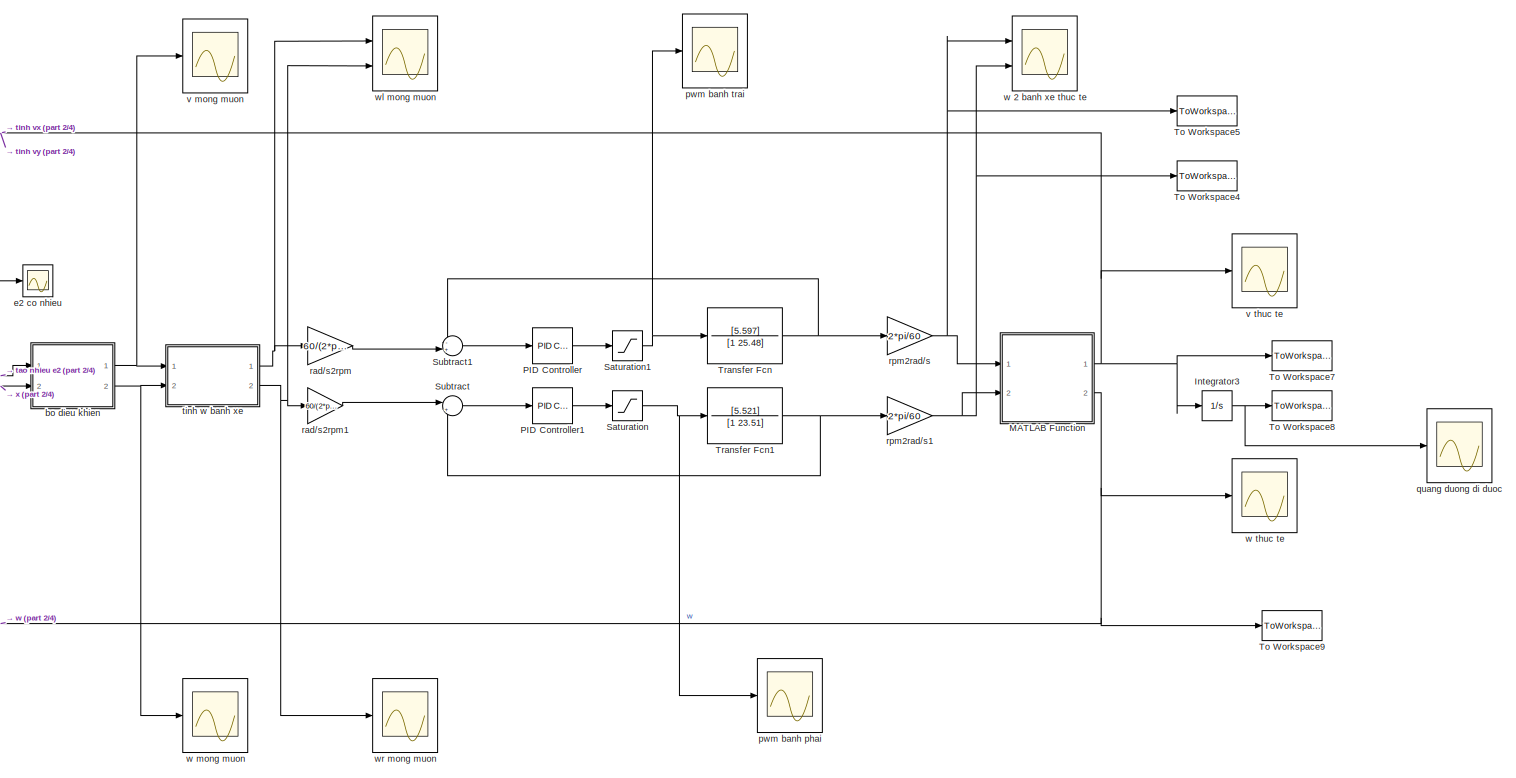
[diagram: root canvas - part 1/4, top right region]
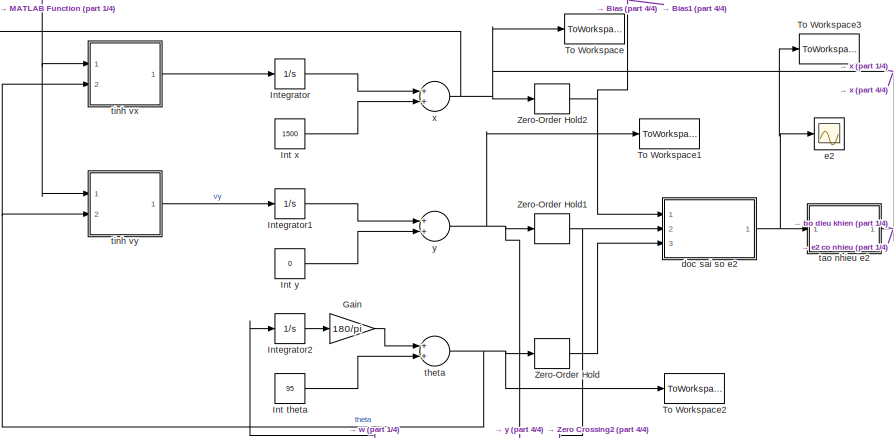
[diagram: root canvas - part 2/4, top left region]
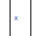
[diagram: root canvas - part 3/4, middle left region]
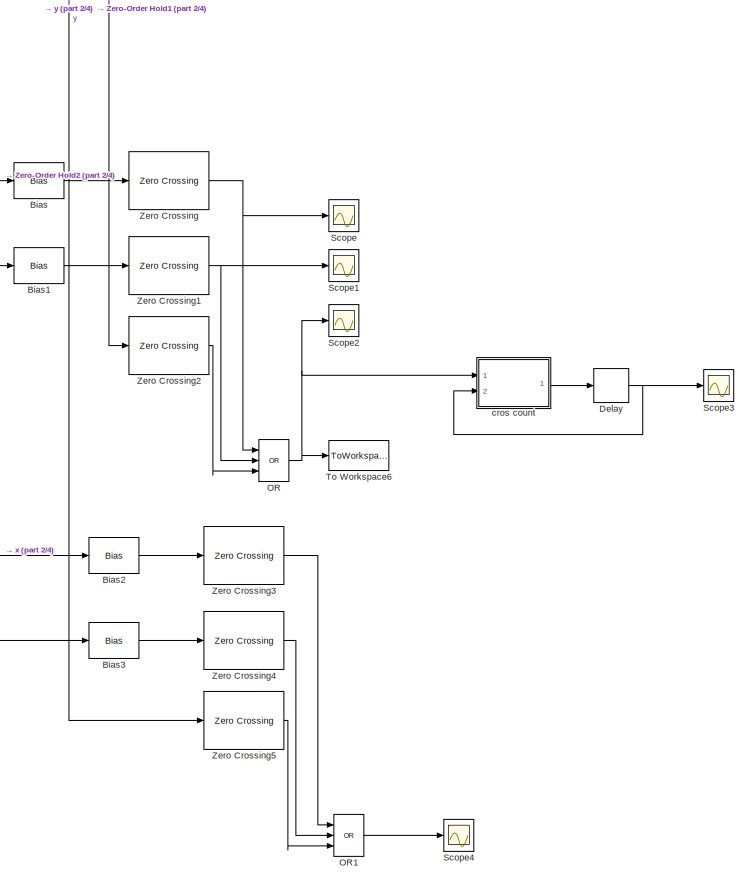
[diagram: root canvas - part 4/4, bottom center region]
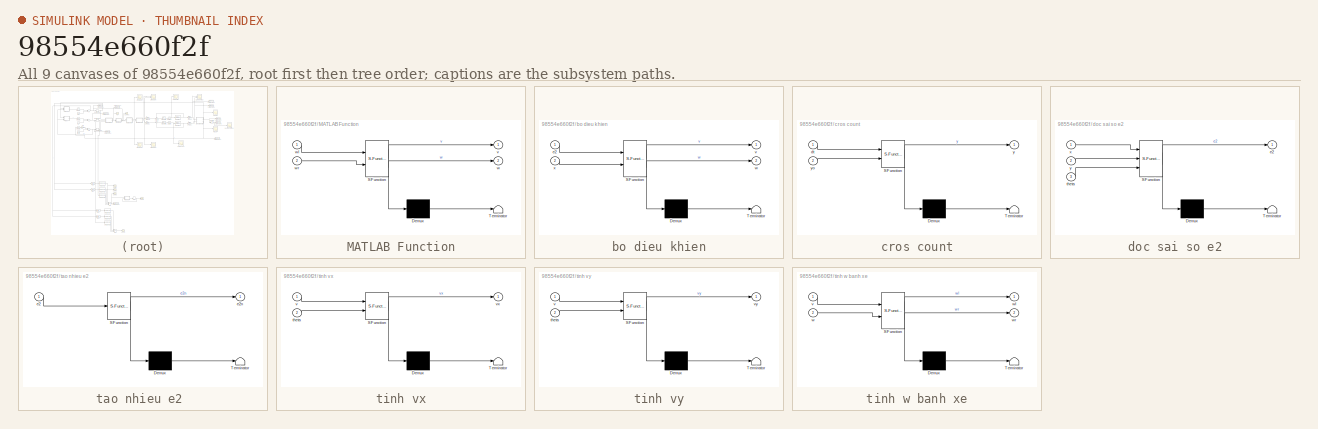
[diagram: thumbnail index - all 9 canvases of the model, root first then tree order]
MODEL slx_98554e660f2f
KIND model
CONFIG AbsTol = auto
CONFIG EnableMultiTasking = off
CONFIG FixedStep = auto
CONFIG MaxStep = auto
CONFIG MinStep = auto
CONFIG RelTol = 1e-3
CONFIG SampleTimeConstraint = Unconstrained
CONFIG Solver = VariableStepAuto
CONFIG SolverName = VariableStepAuto
CONFIG StartTime = 0.0
CONFIG StopTime = 8.5
BLOCK [Bias] Bias
  Bias = -1000
  SaturateOnIntegerOverflow = off
BLOCK [Bias] Bias1
  Bias = 1000
  SaturateOnIntegerOverflow = off
BLOCK [Bias] Bias2
  Bias = -1000
  SaturateOnIntegerOverflow = off
BLOCK [Bias] Bias3
  Bias = 1000
  SaturateOnIntegerOverflow = off
BLOCK [Delay] Delay
  DelayLength = 1
  InputPortMap = u0
  Ports = [1, 1]
  SampleTime = 0.1
BLOCK [Gain] Gain
  Gain = 180/pi
  OutDataTypeStr = Inherit: Inherit via internal rule
  ParamDataTypeStr = Inherit: Inherit via internal rule
  SaturateOnIntegerOverflow = off
BLOCK [Constant] Int theta
  Value = 95
BLOCK [Constant] Int x
  Value = 1500
BLOCK [Constant] Int y
  Value = 0
BLOCK [Integrator] Integrator
  Ports = [1, 1]
BLOCK [Integrator] Integrator1
  Ports = [1, 1]
BLOCK [Integrator] Integrator2
  Ports = [1, 1]
BLOCK [Integrator] Integrator3
  Ports = [1, 1]
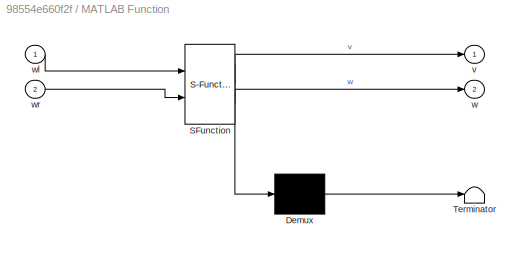
BLOCK [SubSystem] MATLAB Function
  ErrorFcn = Stateflow.Translate.translate
  PermitHierarchicalResolution = ExplicitOnly
  Ports = [2, 2]
  RequestExecContextInheritance = off
  SFBlockType = MATLAB Function
  TreatAsAtomicUnit = on
BLOCK [Demux] MATLAB Function/ Demux 
  Outputs = 1
  Ports = [1, 1]
BLOCK [S-Function] MATLAB Function/ SFunction 
  EnableBusSupport = on
  FunctionName = sf_sfun
  PortCounts = [2 3]
  Ports = [2, 3]
  SFcnIsStateOwnerBlock = off
  SFunctionDeploymentMode = off
  Tag = Stateflow S-Function mophongsimulink 4
BLOCK [Terminator] MATLAB Function/ Terminator 
BLOCK [Outport] MATLAB Function/v
  IconDisplay = Port number
BLOCK [Outport] MATLAB Function/w
  IconDisplay = Port number
  Port = 2
BLOCK [Inport] MATLAB Function/wl
  IconDisplay = Port number
BLOCK [Inport] MATLAB Function/wr
  IconDisplay = Port number
  Port = 2
BLOCK [Logic] OR
  AllPortsSameDT = off
  IconShape = distinctive
  Inputs = 3
  Operator = OR
  OutDataTypeStr = boolean
  Ports = [3, 1]
BLOCK [Logic] OR1
  AllPortsSameDT = off
  IconShape = distinctive
  Inputs = 3
  Operator = OR
  OutDataTypeStr = boolean
  Ports = [3, 1]
BLOCK [Reference] PID Controller  REF=simulink/Continuous/PID Controller
  Ports = [1, 1]
  SourceBlock = simulink/Continuous/PID Controller
  SourceProductBaseCode = SL
  SourceProductName = Simulink
  SourceType = PID 1dof
BLOCK [Reference] PID Controller1  REF=simulink/Continuous/PID Controller
  Ports = [1, 1]
  SourceBlock = simulink/Continuous/PID Controller
  SourceProductBaseCode = SL
  SourceProductName = Simulink
  SourceType = PID 1dof
BLOCK [Saturate] Saturation
  InputPortMap = u0
  LowerLimit = 0
  Ports = [1, 1]
  UpperLimit = 1000
BLOCK [Saturate] Saturation1
  InputPortMap = u0
  LowerLimit = 0
  Ports = [1, 1]
  UpperLimit = 1000
BLOCK [Scope] Scope
  Floating = off
  NumInputPorts = 1
  Ports = [1]
  ScopeSpecificationString = Simulink.scopes.TimeScopeBlockCfg('CurrentConfiguration', extmgr.ConfigurationSet(extmgr.Configuration('Core','General UI',true),extmgr.Configuration('Core','Source UI',true),extmgr.Configuration('Sources','WiredSimulink',true,'DataLoggingVariableName','ScopeData1'),extmgr.Configuration('Visuals','Time Domain',true,'SerializedDisplays',{struct('MinYLimReal','-0.125','MaxYLimReal','1.125','YLabelRe...<+1360ch>
BLOCK [Scope] Scope1
  Floating = off
  NumInputPorts = 1
  Ports = [1]
  ScopeSpecificationString = Simulink.scopes.TimeScopeBlockCfg('CurrentConfiguration', extmgr.ConfigurationSet(extmgr.Configuration('Core','General UI',true),extmgr.Configuration('Core','Source UI',true),extmgr.Configuration('Sources','WiredSimulink',true,'DataLoggingVariableName','ScopeData2'),extmgr.Configuration('Visuals','Time Domain',true,'SerializedDisplays',{struct('MinYLimReal','-0.125','MaxYLimReal','1.125','YLabelRe...<+1361ch>
BLOCK [Scope] Scope2
  Floating = off
  NumInputPorts = 1
  Ports = [1]
  ScopeSpecificationString = Simulink.scopes.TimeScopeBlockCfg('CurrentConfiguration', extmgr.ConfigurationSet(extmgr.Configuration('Core','General UI',true),extmgr.Configuration('Core','Source UI',true),extmgr.Configuration('Sources','WiredSimulink',true,'DataLoggingVariableName','ScopeData3'),extmgr.Configuration('Visuals','Time Domain',true,'SerializedDisplays',{struct('MinYLimReal','-0.125','MaxYLimReal','1.125','YLabelRe...<+1378ch>
BLOCK [Scope] Scope3
  Floating = off
  NumInputPorts = 1
  Ports = [1]
  ScopeSpecificationString = Simulink.scopes.TimeScopeBlockCfg('CurrentConfiguration', extmgr.ConfigurationSet(extmgr.Configuration('Core','General UI',true),extmgr.Configuration('Core','Source UI',true),extmgr.Configuration('Sources','WiredSimulink',true,'DataLoggingVariableName','ScopeData1'),extmgr.Configuration('Visuals','Time Domain',true,'SerializedDisplays',{struct('MinYLimReal','-0.125','MaxYLimReal','1.125','YLabelRe...<+1381ch>
BLOCK [Scope] Scope4
  Floating = off
  NumInputPorts = 1
  Ports = [1]
  ScopeSpecificationString = Simulink.scopes.TimeScopeBlockCfg('CurrentConfiguration', extmgr.ConfigurationSet(extmgr.Configuration('Core','General UI',true),extmgr.Configuration('Core','Source UI',true),extmgr.Configuration('Sources','WiredSimulink',true,'DataLoggingVariableName','ScopeData2'),extmgr.Configuration('Visuals','Time Domain',true,'SerializedDisplays',{struct('MinYLimReal','-0.125','MaxYLimReal','1.125','YLabelRe...<+1379ch>
BLOCK [Sum] Subtract
  IconShape = round
  InputSameDT = off
  Inputs = |+-
  OutDataTypeStr = Inherit: Inherit via internal rule
  Ports = [2, 1]
  SaturateOnIntegerOverflow = off
BLOCK [Sum] Subtract1
  IconShape = round
  InputSameDT = off
  Inputs = -+|
  OutDataTypeStr = Inherit: Inherit via internal rule
  Ports = [2, 1]
  SaturateOnIntegerOverflow = off
BLOCK [ToWorkspace] To Workspace
  FixptAsFi = on
  MaxDataPoints = inf
  Ports = [1]
  SampleTime = 0.1
  Save2DSignal = 3-D array (concatenate along third dimension)
  VariableName = x
BLOCK [ToWorkspace] To Workspace1
  FixptAsFi = on
  MaxDataPoints = inf
  Ports = [1]
  SampleTime = 0.1
  Save2DSignal = 3-D array (concatenate along third dimension)
  VariableName = y
BLOCK [ToWorkspace] To Workspace2
  FixptAsFi = on
  MaxDataPoints = inf
  Ports = [1]
  SampleTime = 0.1
  Save2DSignal = 3-D array (concatenate along third dimension)
  VariableName = theta
BLOCK [ToWorkspace] To Workspace3
  FixptAsFi = on
  MaxDataPoints = inf
  Ports = [1]
  SampleTime = 0.1
  Save2DSignal = 3-D array (concatenate along third dimension)
  VariableName = e2
BLOCK [ToWorkspace] To Workspace4
  FixptAsFi = on
  MaxDataPoints = inf
  Ports = [1]
  SampleTime = 0.1
  Save2DSignal = 3-D array (concatenate along third dimension)
  VariableName = wr
BLOCK [ToWorkspace] To Workspace5
  FixptAsFi = on
  MaxDataPoints = inf
  Ports = [1]
  SampleTime = 0.1
  Save2DSignal = 3-D array (concatenate along third dimension)
  VariableName = wl
BLOCK [ToWorkspace] To Workspace6
  FixptAsFi = on
  MaxDataPoints = inf
  Ports = [1]
  SampleTime = -1
  Save2DSignal = 3-D array (concatenate along third dimension)
  VariableName = cros
BLOCK [ToWorkspace] To Workspace7
  FixptAsFi = on
  MaxDataPoints = inf
  Ports = [1]
  SampleTime = 0.1
  Save2DSignal = 3-D array (concatenate along third dimension)
  VariableName = v
BLOCK [ToWorkspace] To Workspace8
  FixptAsFi = on
  MaxDataPoints = inf
  Ports = [1]
  SampleTime = 0.1
  Save2DSignal = 3-D array (concatenate along third dimension)
  VariableName = s
BLOCK [ToWorkspace] To Workspace9
  FixptAsFi = on
  MaxDataPoints = inf
  Ports = [1]
  SampleTime = 0.1
  Save2DSignal = 3-D array (concatenate along third dimension)
  VariableName = w
BLOCK [TransferFcn] Transfer Fcn
  Denominator = [1 25.48]
  Numerator = [5.597]
BLOCK [TransferFcn] Transfer Fcn1
  Denominator = [1 23.51]
  Numerator = [5.521]
BLOCK [Reference] Zero Crossing  REF=dspsigops/Zero Crossing
  Ports = [1, 1]
  SourceBlock = dspsigops/Zero Crossing
  SourceProductBaseCode = DS
  SourceProductName = DSP System Toolbox
  SourceType = Zero Crossing
  UserDataPersistent = on
BLOCK [Reference] Zero Crossing1  REF=dspsigops/Zero Crossing
  Ports = [1, 1]
  SourceBlock = dspsigops/Zero Crossing
  SourceProductBaseCode = DS
  SourceProductName = DSP System Toolbox
  SourceType = Zero Crossing
  UserDataPersistent = on
BLOCK [Reference] Zero Crossing2  REF=dspsigops/Zero Crossing
  Ports = [1, 1]
  SourceBlock = dspsigops/Zero Crossing
  SourceProductBaseCode = DS
  SourceProductName = DSP System Toolbox
  SourceType = Zero Crossing
  UserDataPersistent = on
BLOCK [Reference] Zero Crossing3  REF=dspsigops/Zero Crossing
  Ports = [1, 1]
  SourceBlock = dspsigops/Zero Crossing
  SourceProductBaseCode = DS
  SourceProductName = DSP System Toolbox
  SourceType = Zero Crossing
  UserDataPersistent = on
BLOCK [Reference] Zero Crossing4  REF=dspsigops/Zero Crossing
  Ports = [1, 1]
  SourceBlock = dspsigops/Zero Crossing
  SourceProductBaseCode = DS
  SourceProductName = DSP System Toolbox
  SourceType = Zero Crossing
  UserDataPersistent = on
BLOCK [Reference] Zero Crossing5  REF=dspsigops/Zero Crossing
  Ports = [1, 1]
  SourceBlock = dspsigops/Zero Crossing
  SourceProductBaseCode = DS
  SourceProductName = DSP System Toolbox
  SourceType = Zero Crossing
  UserDataPersistent = on
BLOCK [ZeroOrderHold] Zero-Order Hold
  SampleTime = 0.1
BLOCK [ZeroOrderHold] Zero-Order Hold1
  SampleTime = 0.1
BLOCK [ZeroOrderHold] Zero-Order Hold2
  SampleTime = 0.1
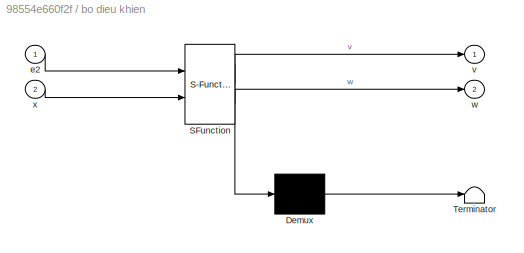
BLOCK [SubSystem] bo dieu khien
  ErrorFcn = Stateflow.Translate.translate
  PermitHierarchicalResolution = ExplicitOnly
  Ports = [2, 2]
  RequestExecContextInheritance = off
  SFBlockType = MATLAB Function
  TreatAsAtomicUnit = on
BLOCK [Demux] bo dieu khien/ Demux 
  Outputs = 1
  Ports = [1, 1]
BLOCK [S-Function] bo dieu khien/ SFunction 
  EnableBusSupport = on
  FunctionName = sf_sfun
  PortCounts = [2 3]
  Ports = [2, 3]
  SFcnIsStateOwnerBlock = off
  SFunctionDeploymentMode = off
  Tag = Stateflow S-Function mophongsimulink 1
BLOCK [Terminator] bo dieu khien/ Terminator 
BLOCK [Inport] bo dieu khien/e2
  IconDisplay = Port number
BLOCK [Outport] bo dieu khien/v
  IconDisplay = Port number
BLOCK [Outport] bo dieu khien/w
  IconDisplay = Port number
  Port = 2
BLOCK [Inport] bo dieu khien/x
  IconDisplay = Port number
  Port = 2
BLOCK [SubSystem] cros count
  ErrorFcn = Stateflow.Translate.translate
  PermitHierarchicalResolution = ExplicitOnly
  Ports = [2, 1]
  RequestExecContextInheritance = off
  SFBlockType = MATLAB Function
  TreatAsAtomicUnit = on
BLOCK [Demux] cros count/ Demux 
  Outputs = 1
  Ports = [1, 1]
BLOCK [S-Function] cros count/ SFunction 
  EnableBusSupport = on
  FunctionName = sf_sfun
  PortCounts = [2 2]
  Ports = [2, 2]
  SFcnIsStateOwnerBlock = off
  SFunctionDeploymentMode = off
  Tag = Stateflow S-Function mophongsimulink 8
BLOCK [Terminator] cros count/ Terminator 
BLOCK [Inport] cros count/dt
  IconDisplay = Port number
BLOCK [Outport] cros count/y
  IconDisplay = Port number
BLOCK [Inport] cros count/yo
  IconDisplay = Port number
  Port = 2
BLOCK [SubSystem] doc sai so e2
  ErrorFcn = Stateflow.Translate.translate
  PermitHierarchicalResolution = ExplicitOnly
  Ports = [3, 1]
  RequestExecContextInheritance = off
  SFBlockType = MATLAB Function
  TreatAsAtomicUnit = on
BLOCK [Demux] doc sai so e2/ Demux 
  Outputs = 1
  Ports = [1, 1]
BLOCK [S-Function] doc sai so e2/ SFunction 
  EnableBusSupport = on
  FunctionName = sf_sfun
  PortCounts = [3 2]
  Ports = [3, 2]
  SFcnIsStateOwnerBlock = off
  SFunctionDeploymentMode = off
  Tag = Stateflow S-Function mophongsimulink 2
BLOCK [Terminator] doc sai so e2/ Terminator 
BLOCK [Outport] doc sai so e2/e2
  IconDisplay = Port number
BLOCK [Inport] doc sai so e2/theta
  IconDisplay = Port number
  Port = 3
BLOCK [Inport] doc sai so e2/x
  IconDisplay = Port number
BLOCK [Inport] doc sai so e2/y
  IconDisplay = Port number
  Port = 2
BLOCK [Scope] e2
  Floating = off
  NumInputPorts = 1
  Ports = [1]
  ScopeSpecificationString = Simulink.scopes.TimeScopeBlockCfg('CurrentConfiguration', extmgr.ConfigurationSet(extmgr.Configuration('Core','General UI',true),extmgr.Configuration('Core','Source UI',true),extmgr.Configuration('Sources','WiredSimulink',true,'DataLoggingVariableName','ScopeData6'),extmgr.Configuration('Visuals','Time Domain',true,'SerializedDisplays',{struct('MinYLimReal','-9.46078','MaxYLimReal','54.39383','YLa...<+1405ch>
BLOCK [Scope] e2 co nhieu
  Floating = off
  NumInputPorts = 1
  Ports = [1]
  ScopeSpecificationString = Simulink.scopes.TimeScopeBlockCfg('CurrentConfiguration', extmgr.ConfigurationSet(extmgr.Configuration('Core','General UI',true),extmgr.Configuration('Core','Source UI',true),extmgr.Configuration('Sources','WiredSimulink',true),extmgr.Configuration('Visuals','Time Domain',true,'SerializedDisplays',{struct('MinYLimReal','-9.23359','MaxYLimReal','51.6205','YLabelReal','','MinYLimMag','0.00000','MaxY...<+1370ch>
BLOCK [Scope] pwm banh phai
  Floating = off
  NumInputPorts = 1
  Ports = [1]
  ScopeSpecificationString = Simulink.scopes.TimeScopeBlockCfg('CurrentConfiguration', extmgr.ConfigurationSet(extmgr.Configuration('Core','General UI',true),extmgr.Configuration('Core','Source UI',true),extmgr.Configuration('Sources','WiredSimulink',true,'DataLoggingVariableName','ScopeData1'),extmgr.Configuration('Visuals','Time Domain',true,'SerializedDisplays',{struct('MinYLimReal','766.57845','MaxYLimReal','1025.93573','...<+1421ch>
BLOCK [Scope] pwm banh trai
  Floating = off
  NumInputPorts = 1
  Ports = [1]
  ScopeSpecificationString = Simulink.scopes.TimeScopeBlockCfg('CurrentConfiguration', extmgr.ConfigurationSet(extmgr.Configuration('Core','General UI',true),extmgr.Configuration('Core','Source UI',true),extmgr.Configuration('Sources','WiredSimulink',true,'DataLoggingVariableName','ScopeData2'),extmgr.Configuration('Visuals','Time Domain',true,'SerializedDisplays',{struct('MinYLimReal','624.64689','MaxYLimReal','959.05636','Y...<+1417ch>
BLOCK [Scope] quang duong di duoc
  Floating = off
  NumInputPorts = 1
  Ports = [1]
  ScopeSpecificationString = Simulink.scopes.TimeScopeBlockCfg('CurrentConfiguration', extmgr.ConfigurationSet(extmgr.Configuration('Core','General UI',true),extmgr.Configuration('Core','Source UI',true),extmgr.Configuration('Sources','WiredSimulink',true,'DataLoggingVariableName','ScopeData1'),extmgr.Configuration('Visuals','Time Domain',true,'SerializedDisplays',{struct('MinYLimReal','-597.05201','MaxYLimReal','5373.46812',...<+1717ch>
BLOCK [Gain] rad//s2rpm
  Gain = 60/(2*pi)
  OutDataTypeStr = Inherit: Inherit via internal rule
  ParamDataTypeStr = Inherit: Inherit via internal rule
  SaturateOnIntegerOverflow = off
BLOCK [Gain] rad//s2rpm1
  Gain = 60/(2*pi)
  OutDataTypeStr = Inherit: Inherit via internal rule
  ParamDataTypeStr = Inherit: Inherit via internal rule
  SaturateOnIntegerOverflow = off
BLOCK [Gain] rpm2rad//s
  Gain = 2*pi/60
  OutDataTypeStr = Inherit: Inherit via internal rule
  ParamDataTypeStr = Inherit: Inherit via internal rule
  SaturateOnIntegerOverflow = off
BLOCK [Gain] rpm2rad//s1
  Gain = 2*pi/60
  OutDataTypeStr = Inherit: Inherit via internal rule
  ParamDataTypeStr = Inherit: Inherit via internal rule
  SaturateOnIntegerOverflow = off
BLOCK [SubSystem] tao nhieu e2 
  ErrorFcn = Stateflow.Translate.translate
  PermitHierarchicalResolution = ExplicitOnly
  Ports = [1, 1]
  RequestExecContextInheritance = off
  SFBlockType = MATLAB Function
  TreatAsAtomicUnit = on
BLOCK [Demux] tao nhieu e2 / Demux 
  Outputs = 1
  Ports = [1, 1]
BLOCK [S-Function] tao nhieu e2 / SFunction 
  EnableBusSupport = on
  FunctionName = sf_sfun
  PortCounts = [1 2]
  Ports = [1, 2]
  SFcnIsStateOwnerBlock = off
  SFunctionDeploymentMode = off
  Tag = Stateflow S-Function mophongsimulink 7
BLOCK [Terminator] tao nhieu e2 / Terminator 
BLOCK [Inport] tao nhieu e2 /e2
  IconDisplay = Port number
BLOCK [Outport] tao nhieu e2 /e2n
  IconDisplay = Port number
BLOCK [Sum] theta
  InputSameDT = off
  OutDataTypeStr = Inherit: Inherit via internal rule
  Ports = [2, 1]
  SaturateOnIntegerOverflow = off
BLOCK [SubSystem] tinh vx
  ErrorFcn = Stateflow.Translate.translate
  PermitHierarchicalResolution = ExplicitOnly
  Ports = [2, 1]
  RequestExecContextInheritance = off
  SFBlockType = MATLAB Function
  TreatAsAtomicUnit = on
BLOCK [Demux] tinh vx/ Demux 
  Outputs = 1
  Ports = [1, 1]
BLOCK [S-Function] tinh vx/ SFunction 
  EnableBusSupport = on
  FunctionName = sf_sfun
  PortCounts = [2 2]
  Ports = [2, 2]
  SFcnIsStateOwnerBlock = off
  SFunctionDeploymentMode = off
  Tag = Stateflow S-Function mophongsimulink 5
BLOCK [Terminator] tinh vx/ Terminator 
BLOCK [Inport] tinh vx/theta
  IconDisplay = Port number
  Port = 2
BLOCK [Inport] tinh vx/v
  IconDisplay = Port number
BLOCK [Outport] tinh vx/vx
  IconDisplay = Port number
BLOCK [SubSystem] tinh vy
  ErrorFcn = Stateflow.Translate.translate
  PermitHierarchicalResolution = ExplicitOnly
  Ports = [2, 1]
  RequestExecContextInheritance = off
  SFBlockType = MATLAB Function
  TreatAsAtomicUnit = on
BLOCK [Demux] tinh vy/ Demux 
  Outputs = 1
  Ports = [1, 1]
BLOCK [S-Function] tinh vy/ SFunction 
  EnableBusSupport = on
  FunctionName = sf_sfun
  PortCounts = [2 2]
  Ports = [2, 2]
  SFcnIsStateOwnerBlock = off
  SFunctionDeploymentMode = off
  Tag = Stateflow S-Function mophongsimulink 6
BLOCK [Terminator] tinh vy/ Terminator 
BLOCK [Inport] tinh vy/theta
  IconDisplay = Port number
  Port = 2
BLOCK [Inport] tinh vy/v
  IconDisplay = Port number
BLOCK [Outport] tinh vy/vy
  IconDisplay = Port number
BLOCK [SubSystem] tinh w banh xe
  ErrorFcn = Stateflow.Translate.translate
  PermitHierarchicalResolution = ExplicitOnly
  Ports = [2, 2]
  RequestExecContextInheritance = off
  SFBlockType = MATLAB Function
  TreatAsAtomicUnit = on
BLOCK [Demux] tinh w banh xe/ Demux 
  Outputs = 1
  Ports = [1, 1]
BLOCK [S-Function] tinh w banh xe/ SFunction 
  EnableBusSupport = on
  FunctionName = sf_sfun
  PortCounts = [2 3]
  Ports = [2, 3]
  SFcnIsStateOwnerBlock = off
  SFunctionDeploymentMode = off
  Tag = Stateflow S-Function mophongsimulink 3
BLOCK [Terminator] tinh w banh xe/ Terminator 
BLOCK [Inport] tinh w banh xe/v
  IconDisplay = Port number
BLOCK [Inport] tinh w banh xe/w
  IconDisplay = Port number
  Port = 2
BLOCK [Outport] tinh w banh xe/wl
  IconDisplay = Port number
BLOCK [Outport] tinh w banh xe/wr
  IconDisplay = Port number
  Port = 2
BLOCK [Scope] v mong muon
  Floating = off
  NumInputPorts = 1
  Ports = [1]
  ScopeSpecificationString = Simulink.scopes.TimeScopeBlockCfg('CurrentConfiguration', extmgr.ConfigurationSet(extmgr.Configuration('Core','General UI',true),extmgr.Configuration('Core','Source UI',true),extmgr.Configuration('Sources','WiredSimulink',true,'DataLoggingVariableName','ScopeData1'),extmgr.Configuration('Visuals','Time Domain',true,'SerializedDisplays',{struct('MinYLimReal','700.00000','MaxYLimReal','900.00000','Y...<+1421ch>
BLOCK [Scope] v thuc te
  Floating = off
  NumInputPorts = 1
  Ports = [1]
  ScopeSpecificationString = Simulink.scopes.TimeScopeBlockCfg('CurrentConfiguration', extmgr.ConfigurationSet(extmgr.Configuration('Core','General UI',true),extmgr.Configuration('Core','Source UI',true),extmgr.Configuration('Sources','WiredSimulink',true,'DataLoggingVariableName','ScopeData1'),extmgr.Configuration('Visuals','Time Domain',true,'SerializedDisplays',{struct('MinYLimReal','-122.95996','MaxYLimReal','1106.63961',...<+1425ch>
BLOCK [Scope] w 2 banh xe thuc te
  Floating = off
  NumInputPorts = 2
  Ports = [2]
  ScopeSpecificationString = Simulink.scopes.TimeScopeBlockCfg('CurrentConfiguration', extmgr.ConfigurationSet(extmgr.Configuration('Core','General UI',true),extmgr.Configuration('Core','Source UI',true),extmgr.Configuration('Sources','WiredSimulink',true,'DataLoggingVariableName','ScopeData1'),extmgr.Configuration('Visuals','Time Domain',true,'SerializedDisplays',{struct('MinYLimReal','-3.07262','MaxYLimReal','27.6536','YLab...<+1418ch>
BLOCK [Scope] w mong muon
  Floating = off
  NumInputPorts = 1
  Ports = [1]
  ScopeSpecificationString = Simulink.scopes.TimeScopeBlockCfg('CurrentConfiguration', extmgr.ConfigurationSet(extmgr.Configuration('Core','General UI',true),extmgr.Configuration('Core','Source UI',true),extmgr.Configuration('Sources','WiredSimulink',true,'DataLoggingVariableName','ScopeData5'),extmgr.Configuration('Visuals','Time Domain',true,'SerializedDisplays',{struct('MinYLimReal','-0.42574','MaxYLimReal','2.44772','YLab...<+1409ch>
BLOCK [Scope] w thuc te
  Floating = off
  NumInputPorts = 1
  Ports = [1]
  ScopeSpecificationString = Simulink.scopes.TimeScopeBlockCfg('CurrentConfiguration', extmgr.ConfigurationSet(extmgr.Configuration('Core','General UI',true),extmgr.Configuration('Core','Source UI',true),extmgr.Configuration('Sources','WiredSimulink',true,'DataLoggingVariableName','ScopeData2'),extmgr.Configuration('Visuals','Time Domain',true,'SerializedDisplays',{struct('MinYLimReal','-13.12208','MaxYLimReal','11.29272','YL...<+1397ch>
BLOCK [Scope] wl mong muon
  Floating = off
  NumInputPorts = 2
  Ports = [2]
  ScopeSpecificationString = Simulink.scopes.TimeScopeBlockCfg('CurrentConfiguration', extmgr.ConfigurationSet(extmgr.Configuration('Core','General UI',true),extmgr.Configuration('Core','Source UI',true),extmgr.Configuration('Sources','WiredSimulink',true,'DataLoggingVariableName','ScopeData3'),extmgr.Configuration('Visuals','Time Domain',true,'SerializedDisplays',{struct('MinYLimReal','13.92394','MaxYLimReal','26.07606','YLa...<+1437ch>
BLOCK [Scope] wr mong muon
  Floating = off
  NumInputPorts = 1
  Ports = [1]
  ScopeSpecificationString = Simulink.scopes.TimeScopeBlockCfg('CurrentConfiguration', extmgr.ConfigurationSet(extmgr.Configuration('Core','General UI',true),extmgr.Configuration('Core','Source UI',true),extmgr.Configuration('Sources','WiredSimulink',true,'DataLoggingVariableName','ScopeData4'),extmgr.Configuration('Visuals','Time Domain',true,'SerializedDisplays',{struct('MinYLimReal','19.0421','MaxYLimReal','25.50737','YLab...<+1411ch>
BLOCK [Sum] x
  InputSameDT = off
  OutDataTypeStr = Inherit: Inherit via internal rule
  Ports = [2, 1]
  SaturateOnIntegerOverflow = off
BLOCK [Sum] y
  InputSameDT = off
  OutDataTypeStr = Inherit: Inherit via internal rule
  Ports = [2, 1]
  SaturateOnIntegerOverflow = off
LINE Bias1:1 -> Zero Crossing1:1
LINE Bias2:1 -> Zero Crossing3:1
LINE Bias3:1 -> Zero Crossing4:1
LINE Bias:1 -> Zero Crossing:1
NET Delay:1 -> Scope3:1, cros count:2
LINE Gain:1 -> theta:1
LINE Int theta:1 -> theta:2
LINE Int x:1 -> x:2
LINE Int y:1 -> y:2
LINE Integrator1:1 -> y:1
LINE Integrator2:1 -> Gain:1
NET Integrator3:1 -> To Workspace8:1, quang duong di duoc:1
LINE Integrator:1 -> x:1
NET MATLAB Function:1 -> Integrator3:1, To Workspace7:1, tinh vx:1, tinh vy:1, v thuc te:1
NET MATLAB Function:2 -> Integrator2:1, To Workspace9:1, w thuc te:1
LINE OR1:1 -> Scope4:1
NET OR:1 -> Scope2:1, To Workspace6:1, cros count:1
LINE PID Controller1:1 -> Saturation:1
LINE PID Controller:1 -> Saturation1:1
NET Saturation1:1 -> Transfer Fcn:1, pwm banh trai:1
NET Saturation:1 -> Transfer Fcn1:1, pwm banh phai:1
LINE Subtract1:1 -> PID Controller:1
LINE Subtract:1 -> PID Controller1:1
NET Transfer Fcn1:1 -> Subtract:2, rpm2rad//s1:1
NET Transfer Fcn:1 -> Subtract1:1, rpm2rad//s:1
NET Zero Crossing1:1 -> OR:2, Scope1:1
LINE Zero Crossing2:1 -> OR:3
LINE Zero Crossing3:1 -> OR1:1
LINE Zero Crossing4:1 -> OR1:2
LINE Zero Crossing5:1 -> OR1:3
NET Zero Crossing:1 -> OR:1, Scope:1
NET Zero-Order Hold1:1 -> Zero Crossing2:1, doc sai so e2:2
NET Zero-Order Hold2:1 -> Bias1:1, Bias:1, doc sai so e2:1
LINE Zero-Order Hold:1 -> doc sai so e2:3
NET bo dieu khien:1 -> tinh w banh xe:1, v mong muon:1
NET bo dieu khien:2 -> tinh w banh xe:2, w mong muon:1
LINE cros count:1 -> Delay:1
NET doc sai so e2:1 -> To Workspace3:1, e2:1, tao nhieu e2 :1
LINE rad//s2rpm1:1 -> Subtract:1
LINE rad//s2rpm:1 -> Subtract1:2
NET rpm2rad//s1:1 -> MATLAB Function:2, To Workspace4:1, w 2 banh xe thuc te:2
NET rpm2rad//s:1 -> MATLAB Function:1, To Workspace5:1, w 2 banh xe thuc te:1
NET tao nhieu e2 :1 -> bo dieu khien:1, e2 co nhieu:1
NET theta:1 -> To Workspace2:1, Zero-Order Hold:1, tinh vx:2, tinh vy:2
LINE tinh vx:1 -> Integrator:1
LINE tinh vy:1 -> Integrator1:1
NET tinh w banh xe:1 -> rad//s2rpm:1, wl mong muon:1
NET tinh w banh xe:2 -> rad//s2rpm1:1, wl mong muon:2, wr mong muon:1
NET x:1 -> Bias2:1, Bias3:1, To Workspace:1, Zero-Order Hold2:1, bo dieu khien:2
NET y:1 -> To Workspace1:1, Zero Crossing5:1, Zero-Order Hold1:1
note: NET lines group one-source signal fan-out (src -> all destinations, sorted); 1:1 wires keep LINE
CHART bo dieu khien states=1 transitions=1
  STATE_LABEL 'eML_blk_kernel()'
  STATE_LABEL 'SCRIPT:\nfunction [v,w]=bodieukhien(e2,x)\n%if(x>1000||x<-1000)\n   % if(abs(e2)<60)\n    v=800;\n    w=e2*0.045;\n   % else\n   %     v=0;\n   %     w=0;\n   % end\n%else\n%   if(x>0)\n%   v=(1000-x)/10+800;\n%    else\n%    v=(1000+x)/10+800;\n%    end\n%w=e2*0.045;    \n%end\n%end\n'
CHART doc sai so e2 states=1 transitions=1
  STATE_LABEL 'eML_blk_kernel()'
  STATE_LABEL 'SCRIPT:\nfunction e2=docsaisoe2(x,y,theta)\nDc=257;\nout=-1;\nssx=x+Dc*cosd(theta);\nssy=y+Dc*sind(theta);  \nsstheta=theta+90;  % Toa do cua day cam bien\n r=-ssx*sind(sstheta)+ssy*cosd(sstheta); %tim phuong trinh duong sensor\n check=1;\n e2=-1;                      \n A=[-sind(sstheta) cosd(sstheta); 0 1];   %phuong trinh duong line duoi\n B= [r ; -500];\n temp=A\\B;\n xR=temp(1);\n yR=temp(2);\n if(isinf(xR)=...<+3469ch>'
CHART tinh w banh xe states=1 transitions=1
  STATE_LABEL 'eML_blk_kernel()'
  STATE_LABEL 'SCRIPT:\nfunction [wl,wr] = tinhwbanhxe(v,w)\nr=40;\nL=177;\nwl=(v-w*L/2)/r;\nwr=(v+w*L/2)/r;\nend'
CHART MATLAB Function states=1 transitions=1
  STATE_LABEL 'eML_blk_kernel()'
  STATE_LABEL 'SCRIPT:\nfunction [v,w] = wtov(wl,wr)\nr=40;\nb=88.5;\nv=(wl+wr)*r/2;\nw=(wr-wl)*r/(2*b);\n'
CHART tinh vx states=1 transitions=1
  STATE_LABEL 'eML_blk_kernel()'
  STATE_LABEL 'SCRIPT:\nfunction vx = calvx(v,theta)\nvx=v*cosd(theta);\n'
CHART tinh vy states=1 transitions=1
  STATE_LABEL 'eML_blk_kernel()'
  STATE_LABEL 'SCRIPT:\nfunction vy = calvy(v,theta)\nvy=v*sind(theta);\n'
CHART tao nhieu e2
 states=1 transitions=1
  STATE_LABEL 'eML_blk_kernel()'
  STATE_LABEL 'SCRIPT:\nfunction e2n = taonhieue2(e2)\n\ne2n= e2+rand(1)*10-5;\n'
CHART cros count states=1 transitions=1
  STATE_LABEL 'eML_blk_kernel()'
  STATE_LABEL 'SCRIPT:\nfunction y = fcn(dt,yo)\n\nif(dt==1)\n    y=yo+1;\nelse\n    y=yo;\nend\n'
